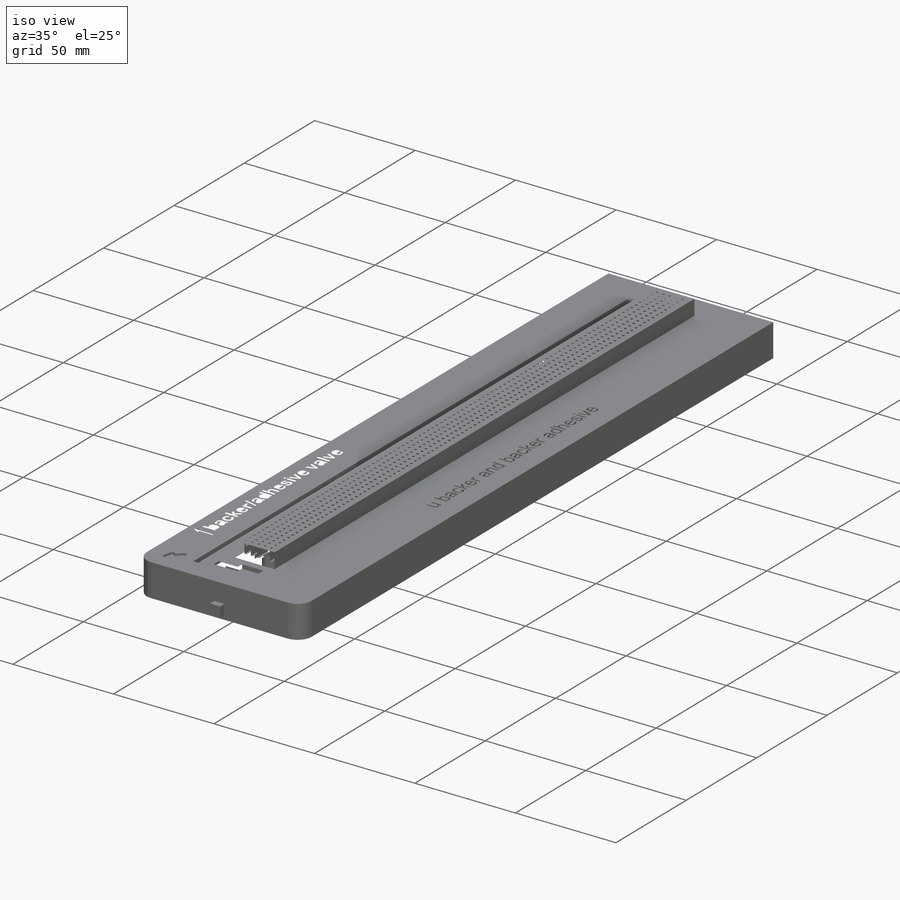
[diagram: iso view]
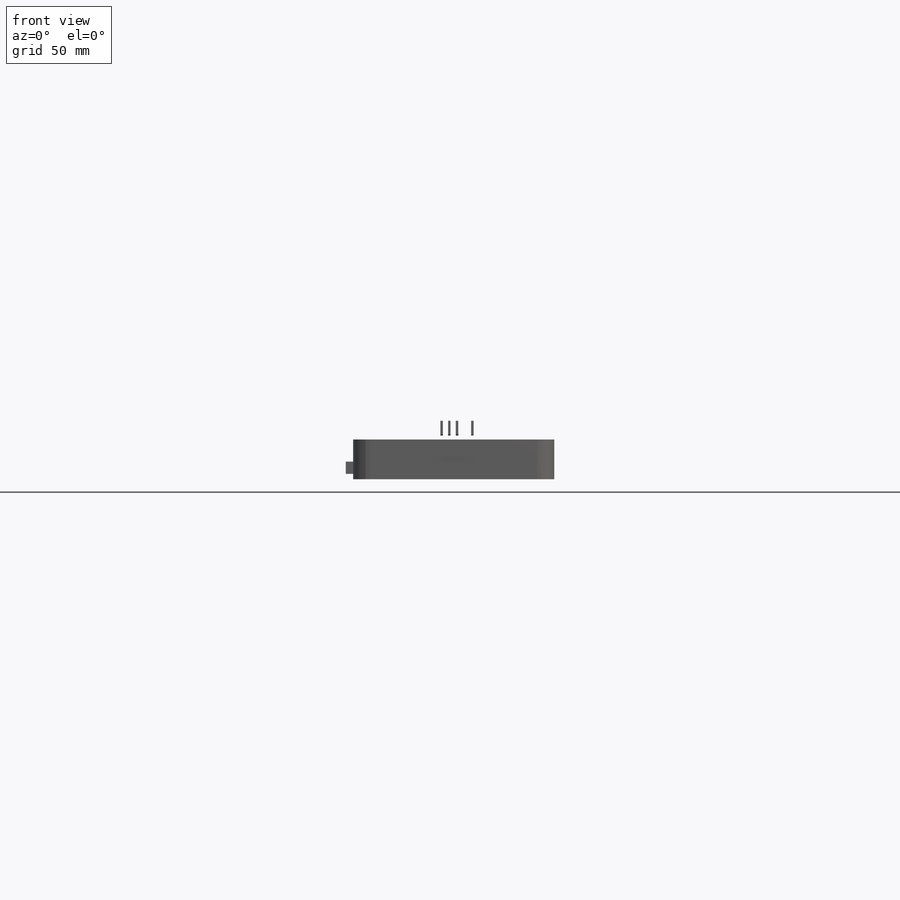
[diagram: front view]
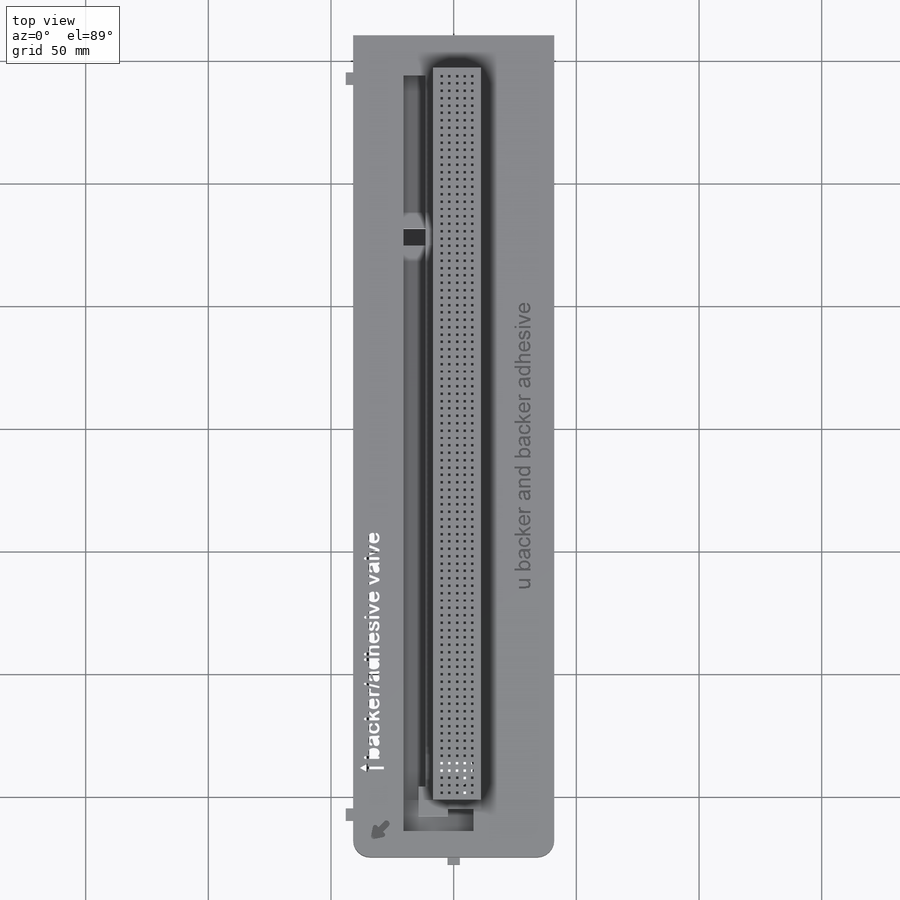
[diagram: top view]
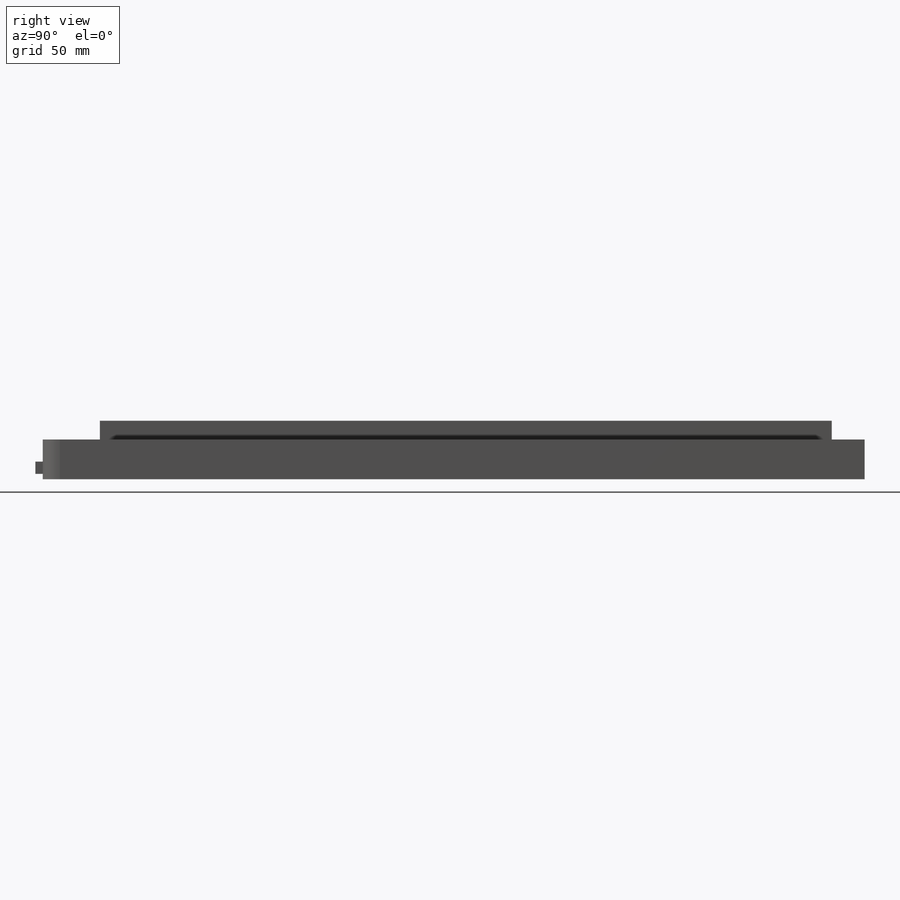
[diagram: right view]
SOLIDWORKS PART (.sldprt)
format: sldprt  version: not decoded by parser v0  size: 4,091,904 bytes
history: native  units: mm
features: sketch x30, cut_extrude x16, extrude x9, fillet x6, pattern_linear x3, sweep x2, material x1, mirror x1 (+11 scaffold rows collapsed)
feature tree (79):
  scaffold x11  (default folders/planes/origin — collapsed)
  material  "6061 Alloy"
  sketch  "Sketch1"  dims[c1.D1=3.0mm c1.D2=3.0mm c1.D3=15.0mm c2.D1=3.0mm c2.D2=3.0mm c2.D3=20.0mm c3.D1=41.0mm c3.D2=~124.70025mm c3.D3=335.0mm]
  extrude  "Extrude1"  Depth=23.6192mm
  fillet  "Fillet1"  Radius=7mm
  sketch  "Sketch3"  dims[c1.D1=~102.115375mm c1.D2=10.635mm c1.D3=19.5549mm c1.D4=299.0mm c2.D2=8.4199mm]
  cut_extrude  "top vacuum bed"  Depth=16mm
  sketch  "Sketch4"  dims[D1=~21.01652mm D2=~14.03098mm D3=~13.532286mm D4=~9.594443mm]
  sketch  "Sketch5"  dims[c1.D1=2.159mm c1.D2=2.4384mm c1.D3=~3.614439mm c2.D3=66.0deg c2.D1=2.3749mm]
  sweep  "Cut-Sweep1"
  fillet  "Fillet2"  Radius=0.254mm
  fillet  "Fillet3"  Radius=0.254mm
  fillet  "Fillet4"  Radius=0.254mm
  sketch  "Sketch6"  dims[D1=10.7696mm]
  sketch  "Sketch7"  dims[c1.D1=2.3876mm c1.D2=2.4384mm c1.D3=2.159mm c2.D3=66.0deg]
  sweep  "Cut-Sweep2"
  sketch  "Sketch8"  dims[D1=7.0mm]
  cut_extrude  "Extrude3"  Depth=5mm
  pattern_linear  "o rings"  Count1=14 Count2=1 Spacing1=19.67mm Spacing2=10mm
  sketch  "Sketch11"  dims[D2=~2.345122mm D3=~1.809001mm D4=~12.293034mm D1=5.0mm]
  cut_extrude  "Extrude6"  Depth=2mm
  sketch  "Sketch12"  dims[D1=7.0mm D2=8.0mm]
  extrude  "Extrude7"  [1 undecoded]
  pattern_linear  "LPattern4"  Count1=15 Count2=1 Spacing1=20.5mm Spacing2=10mm
  mirror  "Mirror1"
  sketch  "Sketch13"  dims[D1=3.0mm D2=3.0mm D3=12.0mm D4=9.0mm]
  cut_extrude  "Extrude8"  Depth=2mm
  sketch  "Sketch14"  dims[D1=3.0mm]
  cut_extrude  "Extrude9"  [1 undecoded]
  sketch  "Sketch15"  dims[D1=1.5mm]
  extrude  "Extrude10"  [1 undecoded]
  sketch  "Sketch21"  dims[D1=5.0mm D2=2.0mm D3=15.0mm D4=15.0mm]
  extrude  "Extrude15"  Depth=3mm
  sketch  "Sketch22"
  extrude  "Extrude16"  Depth=3mm
  fillet  "Fillet5"  Radius=7mm
  sketch  "Sketch23"  dims[c1.D1=~10.610695mm c2.D1=45.0deg c2.D2=2.6mm c2.D3=4.5mm c2.D4=6.0mm c2.D5=4.0mm]
  cut_extrude  "Extrude17"  Depth=1mm
  fillet  "Fillet6"  Radius=1mm
  sketch  "Sketch24"
  cut_extrude  "Extrude18"  Depth=1mm
  sketch  "Sketch26"  dims[c1.D1=3.0mm c1.D2=3.0mm c1.D3=2.0mm c1.D4=3.0mm c2.D3=1.0mm]
  cut_extrude  "Extrude20"  Depth=6mm
  sketch  "Sketch25"  dims[D1=7.0mm D2=1.8848mm]
  cut_extrude  "Extrude19"  [1 undecoded]
  sketch  "Sketch27"
  cut_extrude  "Extrude21"  Depth=5mm
  sketch  "Sketch28"  dims[D1=2.0026mm D2=1.0026mm]
  extrude  "Extrude22"  Depth=3mm
  pattern_linear  "LPattern5"  Count1=97 Count2=1 Spacing1=3.011025mm Spacing2=10mm
  sketch  "stop port layout"  dims[D1=7.0mm]
  sketch  "Sketch30"
  cut_extrude  "Extrude23"  Depth=8mm
  sketch  "Sketch31"
  cut_extrude  "Extrude24"  Depth=7mm
  sketch  "Sketch32"
  cut_extrude  "Extrude25"  [1 undecoded]
  sketch  "Sketch33"
  cut_extrude  "Extrude26"  Depth=1mm
  sketch  "Sketch34"
  cut_extrude  "Extrude27"  Depth=1mm
  sketch  "Sketch35"  dims[D1=0.0mm D2=0.0mm D3=0.0mm D4=0.0mm D5=0.0mm D6=0.0mm D7=0.0mm D8=0.0mm D9=0.0mm D10=0.0mm D11=0.0mm D12=0.0mm D13=0.0mm D14=0.0mm D15=0.0mm D16=0.0mm D17=0.0mm D18=0.0mm D19=0.0mm D20=0.0mm D21=0.0mm D22=0.0mm D23=0.0mm D24=0.0mm D25=0.0mm D26=0.0mm D27=0.0mm D28=0.0mm]
  extrude  "Boss-Extrude1"  Depth=0.18mm
  sketch  "Sketch36"  dims[D1=0.0mm D2=2.0mm]
  extrude  "Boss-Extrude2"  [1 undecoded]
  sketch  "Sketch37"  dims[c1.D1=3.0mm c1.D2=3.0mm c2.D1=12.0mm c2.D2=3.0mm c2.D3=3.0mm]
  extrude  "Boss-Extrude3"  [1 undecoded]
  sketch  "Sketch38"  dims[D1=0.7mm]
  cut_extrude  "Cut-Extrude1"  [1 undecoded]
decode coverage: 48 of 67 modeling features carry decoded parameters
note: ~ marks probable driven/reference dimensions
note: 8 parameter values undecoded
summary: no parameter record found for 8 features
note: suppression state not decoded; provenance and decode notes live in map.json
